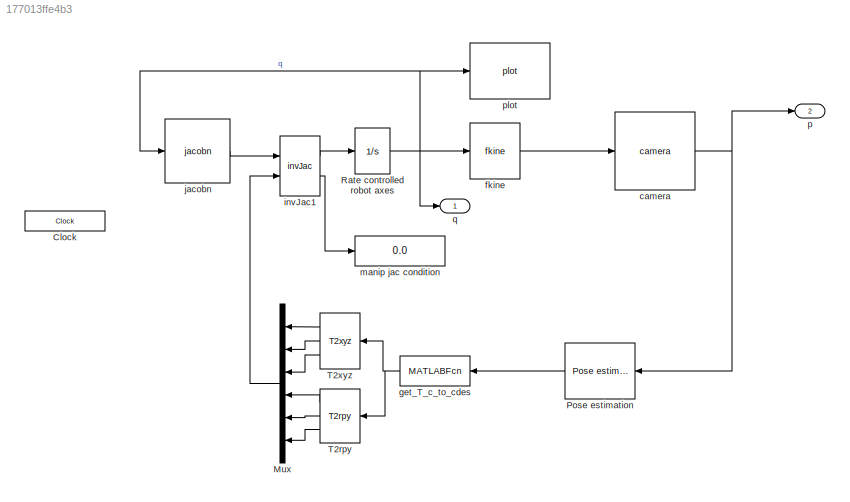
MODEL slx_177013ffe4b3
KIND model
CONFIG AbsTol = auto
CONFIG FixedStep = auto
CONFIG InitFcn = mdl_puma560\ncamera = CentralCamera('default');\nP = mkgrid(2, 0.5, troty(pi/2)*transl(0,0,2.5));\nq0 = [0 pi/4 pi 0 pi/4 -pi/4]';
CONFIG MaxStep = auto
CONFIG MinStep = auto
CONFIG RelTol = 1e-3
CONFIG SampleTimeConstraint = Unconstrained
CONFIG Solver = ode45
CONFIG SolverMode = Auto
CONFIG SolverName = ode45
CONFIG StartTime = 0.0
CONFIG StopTime = 20.0
BLOCK [Clock] Clock
  DisplayTime = on
BLOCK [Mux] Mux
  DisplayOption = bar
  Inputs = 6
  Ports = [6, 1]
BLOCK [Reference] Pose estimation  REF=roblocks/Vision/Pose estimation  (lib defined in mdl_2a292b13c81b, mdl_69400f8cfe22, +12 more)
  Ports = [1, 1]
  SourceBlock = roblocks/Vision/Pose estimation
BLOCK [Integrator] Rate controlled robot axes
  InitialCondition = q0
  Ports = [1, 1]
BLOCK [Reference] T2rpy  REF=roblocks/Transform Conversion/T2rpy  (lib defined in mdl_2a292b13c81b, mdl_69400f8cfe22, +12 more)
  Ports = [1, 3]
  SourceBlock = roblocks/Transform Conversion/T2rpy
BLOCK [Reference] T2xyz  REF=roblocks/Transform Conversion/T2xyz  (lib defined in mdl_2a292b13c81b, mdl_69400f8cfe22, +12 more)
  Ports = [1, 3]
  SourceBlock = roblocks/Transform Conversion/T2xyz
BLOCK [Reference] camera  REF=roblocks/Vision/camera  (lib defined in mdl_2a292b13c81b, mdl_69400f8cfe22, +12 more)
  Ports = [1, 1]
  SourceBlock = roblocks/Vision/camera
BLOCK [Reference] fkine  REF=roblocks/Kinematics/fkine  (lib defined in mdl_2a292b13c81b, mdl_69400f8cfe22, +12 more)
  Ports = [1, 1]
  SourceBlock = roblocks/Kinematics/fkine
BLOCK [MATLABFcn] get_T_c_to_cdes
  MATLABFcn = get_T_c_to_cdes(u)
  Output1D = off
  OutputDimensions = [4,4]
  Ports = [1, 1]
BLOCK [Reference] invJac1  REF=roblocks/Vision/invJac  (lib defined in mdl_2a292b13c81b, mdl_69400f8cfe22, +12 more)
  Ports = [2, 2]
  SourceBlock = roblocks/Vision/invJac
BLOCK [Reference] jacobn  REF=roblocks/Kinematics/jacobn  (lib defined in mdl_2a292b13c81b, mdl_69400f8cfe22, +12 more)
  Ports = [1, 1]
  SourceBlock = roblocks/Kinematics/jacobn
BLOCK [Display] manip jac condition
  Decimation = 1
  Ports = [1]
BLOCK [Outport] p
  IconDisplay = Port number
  Port = 2
BLOCK [Reference] plot  REF=roblocks/Robot Graphics/plot  (lib defined in mdl_2a292b13c81b, mdl_69400f8cfe22, +12 more)
  Ports = [1]
  SourceBlock = roblocks/Robot Graphics/plot
BLOCK [Outport] q
  IconDisplay = Port number
LINE Mux:1 -> invJac1:2
LINE Pose estimation:1 -> get_T_c_to_cdes:1
NET Rate controlled robot axes:1 -> fkine:1, jacobn:1, plot:1, q:1
LINE T2rpy:1 -> Mux:4
LINE T2rpy:2 -> Mux:5
LINE T2rpy:3 -> Mux:6
LINE T2xyz:1 -> Mux:1
LINE T2xyz:2 -> Mux:2
LINE T2xyz:3 -> Mux:3
NET camera:1 -> Pose estimation:1, p:1
LINE fkine:1 -> camera:1
NET get_T_c_to_cdes:1 -> T2rpy:1, T2xyz:1
LINE invJac1:1 -> Rate controlled robot axes:1
LINE invJac1:2 -> manip jac condition:1
LINE jacobn:1 -> invJac1:1
note: NET lines group one-source signal fan-out (src -> all destinations, sorted); 1:1 wires keep LINE
